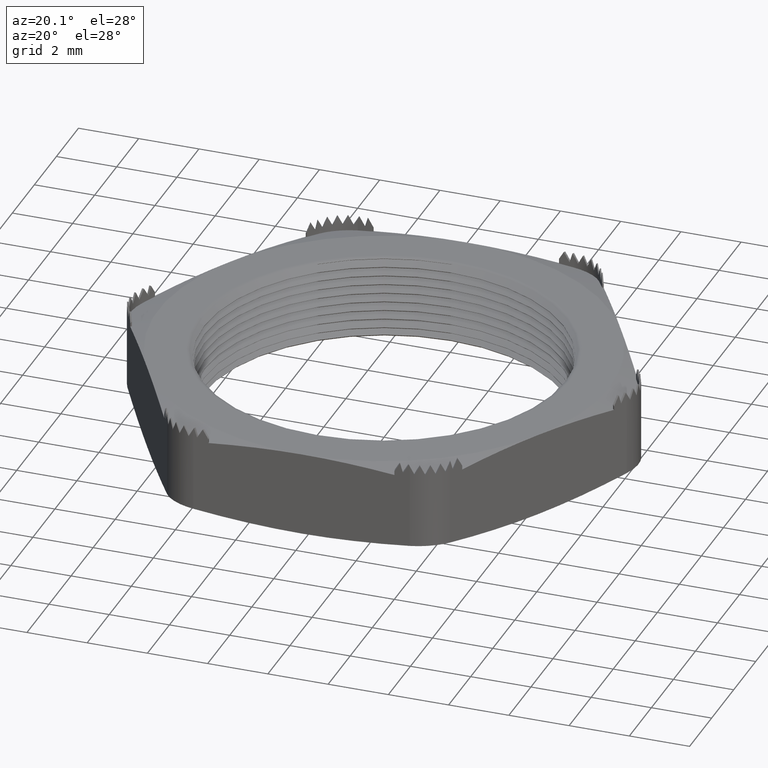
[diagram: clean part render]
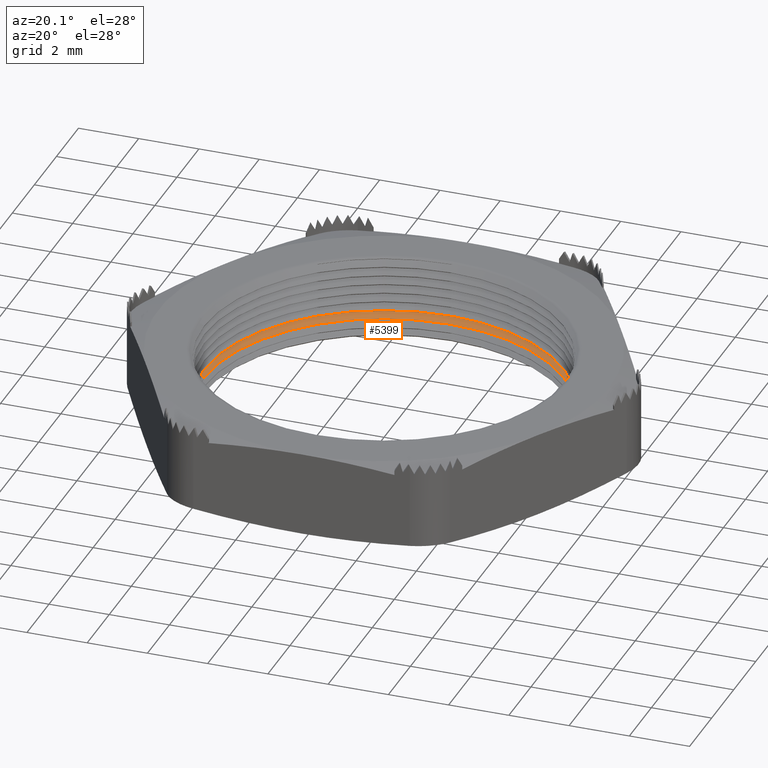
[diagram: same view with one face highlighted and labeled with its STEP entity id]
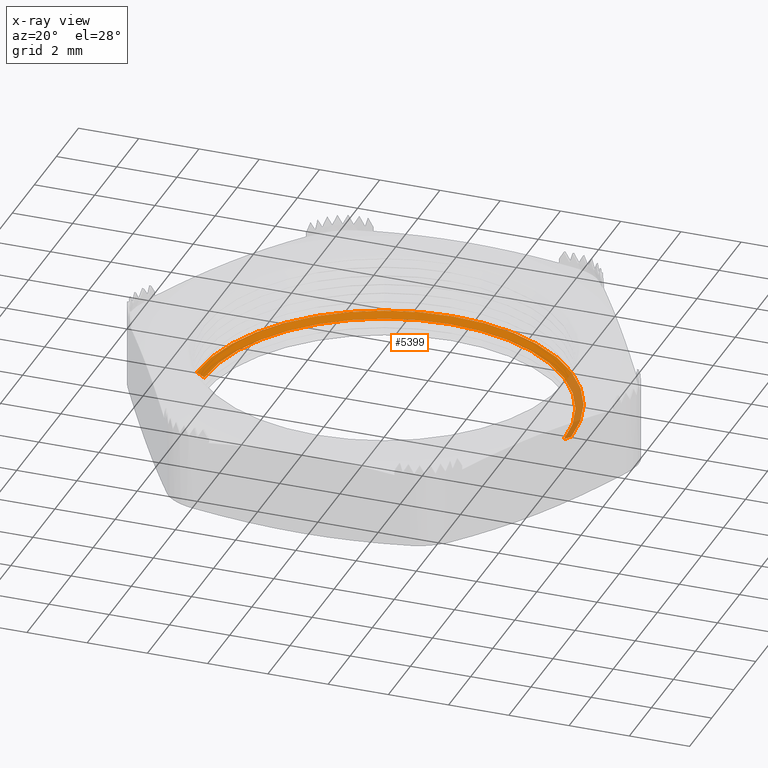
[diagram: x-ray of the same camera — body ghosted, the highlighted face saturated]
A machine part, auxiliary view. The second image highlights one B-rep face of the part: STEP entity #5399.
The next image is the same camera in x-ray: the body ghosted, the highlighted face saturated — about 13% of this face is hidden behind the body in this view.
In plain terms, the highlighted conical surface has half-angle 60 deg.
Its self-contained STEP definition (entity closure, byte-faithful):
#532 = VERTEX_POINT ( 'NONE', #1847 ) ;
#533 = VERTEX_POINT ( 'NONE', #1846 ) ;
#535 = EDGE_CURVE ( 'NONE', #532, #536, #1907, .T. ) ;
#536 = VERTEX_POINT ( 'NONE', #1903 ) ;
#539 = VERTEX_POINT ( 'NONE', #1897 ) ;
#541 = EDGE_CURVE ( 'NONE', #533, #539, #1896, .T. ) ;
#1846 = CARTESIAN_POINT ( 'NONE',  ( 0.2350000000000000400, 2.877919977996281100E-017, 0.02645299461620761300 ) ) ;
#1847 = CARTESIAN_POINT ( 'NONE',  ( -0.2350000000000000400, 0.0000000000000000000, 0.02645299461620761300 ) ) ;
#1893 = DIRECTION ( 'NONE',  ( 0.8660254037844364900, 0.0000000000000000000, 0.5000000000000037700 ) ) ;
#1894 = VECTOR ( 'NONE', #1893, 39.37007874015748100 ) ;
#1895 = CARTESIAN_POINT ( 'NONE',  ( 0.2350000000000000100, 0.0000000000000000000, 0.02645299461620761300 ) ) ;
#1896 = LINE ( 'NONE', #1895, #1894 ) ;
#1897 = CARTESIAN_POINT ( 'NONE',  ( 0.2450000000000000000, 3.000384657911014900E-017, 0.03222649730810390300 ) ) ;
#1903 = CARTESIAN_POINT ( 'NONE',  ( -0.2450000000000000000, 0.0000000000000000000, 0.03222649730810390300 ) ) ;
#1904 = DIRECTION ( 'NONE',  ( -0.8660254037844364900, 1.060575238724904300E-016, 0.5000000000000037700 ) ) ;
#1905 = VECTOR ( 'NONE', #1904, 39.37007874015748100 ) ;
#1906 = CARTESIAN_POINT ( 'NONE',  ( -0.2350000000000000100, 2.877919977996280400E-017, 0.02645299461620761300 ) ) ;
#1907 = LINE ( 'NONE', #1906, #1905 ) ;
#3337 = DIRECTION ( 'NONE',  ( 1.000000000000000000, 0.0000000000000000000, 0.0000000000000000000 ) ) ;
#3338 = DIRECTION ( 'NONE',  ( 0.0000000000000000000, 0.0000000000000000000, 1.000000000000000000 ) ) ;
#3339 = AXIS2_PLACEMENT_3D ( 'NONE', #3344, #3338, #3337 ) ;
#3340 = CIRCLE ( 'NONE', #3339, 0.2350000000000000100 ) ;
#3344 = CARTESIAN_POINT ( 'NONE',  ( 0.0000000000000000000, 0.0000000000000000000, 0.02645299461620761300 ) ) ;
#3410 = CONICAL_SURFACE ( 'NONE', #3411, 0.2350000000000000100, 1.047197551196593400 ) ;
#3411 = AXIS2_PLACEMENT_3D ( 'NONE', #3474, #3473, #3472 ) ;
#3412 = FACE_OUTER_BOUND ( 'NONE', #5400, .T. ) ;
#3413 = DIRECTION ( 'NONE',  ( 1.000000000000000000, 0.0000000000000000000, 0.0000000000000000000 ) ) ;
#3414 = DIRECTION ( 'NONE',  ( 0.0000000000000000000, 0.0000000000000000000, 1.000000000000000000 ) ) ;
#3415 = AXIS2_PLACEMENT_3D ( 'NONE', #3421, #3414, #3413 ) ;
#3416 = CIRCLE ( 'NONE', #3415, 0.2450000000000000000 ) ;
#3421 = CARTESIAN_POINT ( 'NONE',  ( 0.0000000000000000000, 0.0000000000000000000, 0.03222649730810390300 ) ) ;
#3472 = DIRECTION ( 'NONE',  ( 1.000000000000000000, 0.0000000000000000000, 0.0000000000000000000 ) ) ;
#3473 = DIRECTION ( 'NONE',  ( 0.0000000000000000000, 0.0000000000000000000, 1.000000000000000000 ) ) ;
#3474 = CARTESIAN_POINT ( 'NONE',  ( 0.0000000000000000000, 0.0000000000000000000, 0.02645299461620761300 ) ) ;
#5317 = EDGE_CURVE ( 'NONE', #533, #532, #3340, .T. ) ;
#5398 = EDGE_CURVE ( 'NONE', #539, #536, #3416, .T. ) ;
#5399 = ADVANCED_FACE ( 'NONE', ( #3412 ), #3410, .F. ) ;
#5400 = EDGE_LOOP ( 'NONE', ( #5401, #5402, #5403, #5404 ) ) ;
#5401 = ORIENTED_EDGE ( 'NONE', *, *, #535, .F. ) ;
#5402 = ORIENTED_EDGE ( 'NONE', *, *, #5317, .F. ) ;
#5403 = ORIENTED_EDGE ( 'NONE', *, *, #541, .T. ) ;
#5404 = ORIENTED_EDGE ( 'NONE', *, *, #5398, .T. ) ;